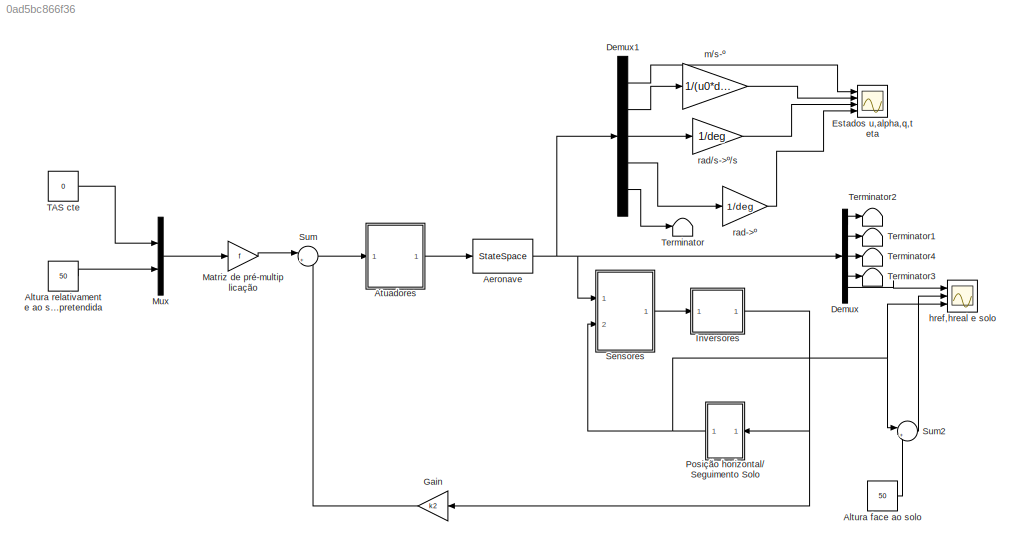
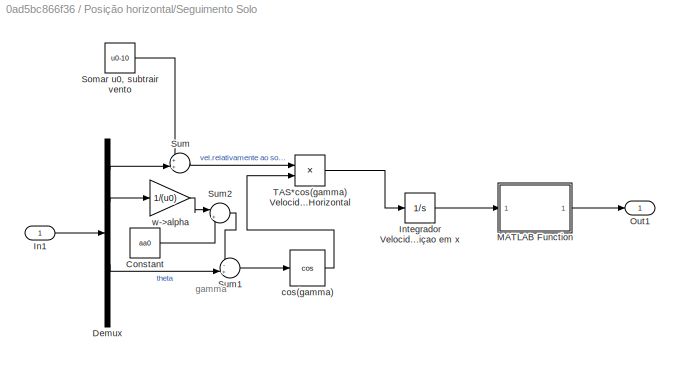
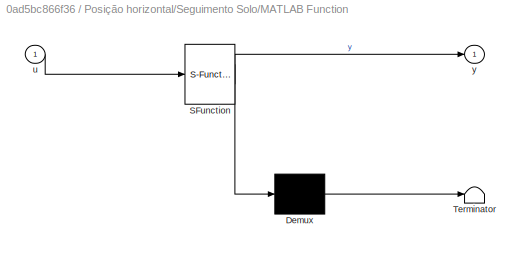
MODEL slx_0ad5bc866f36
KIND model
CONFIG AbsTol = auto
CONFIG EnableMultiTasking = off
CONFIG FixedStep = auto
CONFIG MaxStep = auto
CONFIG MinStep = auto
CONFIG RelTol = 1e-3
CONFIG SampleTimeConstraint = Unconstrained
CONFIG Solver = VariableStepAuto
CONFIG SolverName = VariableStepAuto
CONFIG StartTime = 0.0
CONFIG StopTime = 100
BLOCK [StateSpace] Aeronave
  A = ah
  B = bh
  C = eye(5)
  D = zeros(5,2)
  InitialCondition = [0 0 0 0 50+5*u0]
  Ports = [1, 1]
BLOCK [Constant] Altura face ao solo   
  Value = 50
BLOCK [Constant] Altura relativamente ao solo pretendida
  Value = 50
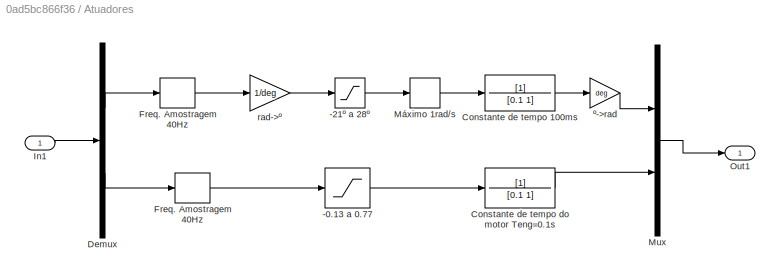
BLOCK [SubSystem] Atuadores
  Ports = [1, 1]
  RequestExecContextInheritance = off
BLOCK [TransferFcn] Atuadores/ Constante de tempo do motor Teng=0.1s
  Denominator = [0.1 1]
BLOCK [Saturate] Atuadores/-0.13 a 0.77
  InputPortMap = u0
  LowerLimit = -0.13
  Ports = [1, 1]
  UpperLimit = 0.77
BLOCK [Saturate] Atuadores/-21º a 28º
  InputPortMap = u0
  LowerLimit = -21
  Ports = [1, 1]
  UpperLimit = 28
BLOCK [TransferFcn] Atuadores/Constante de tempo 100ms
  Denominator = [0.1 1]
BLOCK [Demux] Atuadores/Demux
  DisplayOption = bar
  Outputs = 2
  Ports = [1, 2]
BLOCK [ZeroOrderHold] Atuadores/Freq. Amostragem 40Hz
  SampleTime = 1/40
BLOCK [Inport] Atuadores/In1
  IconDisplay = Port number
BLOCK [Mux] Atuadores/Mux
  DisplayOption = bar
  Inputs = 2
  Ports = [2, 1]
BLOCK [RateLimiter] Atuadores/Máximo 1rad//s
  FallingSlewLimit = -1/deg
  RisingSlewLimit = 1/deg
  SampleTimeMode = inherited
BLOCK [Outport] Atuadores/Out1
  IconDisplay = Port number
BLOCK [Gain] Atuadores/rad->º
  Gain = 1/deg
  OutDataTypeStr = Inherit: Inherit via internal rule
  ParamDataTypeStr = Inherit: Inherit via internal rule
  SaturateOnIntegerOverflow = off
BLOCK [Gain] Atuadores/º->rad
  Gain = deg
  OutDataTypeStr = Inherit: Inherit via internal rule
  ParamDataTypeStr = Inherit: Inherit via internal rule
  SaturateOnIntegerOverflow = off
BLOCK [Demux] Demux
  DisplayOption = bar
  Outputs = 5
  Ports = [1, 5]
BLOCK [Demux] Demux1
  DisplayOption = bar
  Outputs = 5
  Ports = [1, 5]
BLOCK [Scope] Estados u,alpha,q,teta
  Floating = off
  NumInputPorts = 4
  Ports = [4]
  ScopeSpecificationString = Simulink.scopes.TimeScopeBlockCfg('CurrentConfiguration', extmgr.ConfigurationSet(extmgr.Configuration('Core','General UI',true,'FigureColor',[0.862745098039216 0.862745098039216 0.862745098039216]),extmgr.Configuration('Core','Source UI',true),extmgr.Configuration('Sources','WiredSimulink',true,'DataLoggingVariableName','ScopeData1'),extmgr.Configuration('Visuals','Time Domain',true,'SerializedDi...<+4196ch>
BLOCK [Gain] Gain
  Gain = k2
  Multiplication = Matrix(K*u)
  OutDataTypeStr = Inherit: Inherit via internal rule
  ParamDataTypeStr = Inherit: Inherit via internal rule
  SaturateOnIntegerOverflow = off
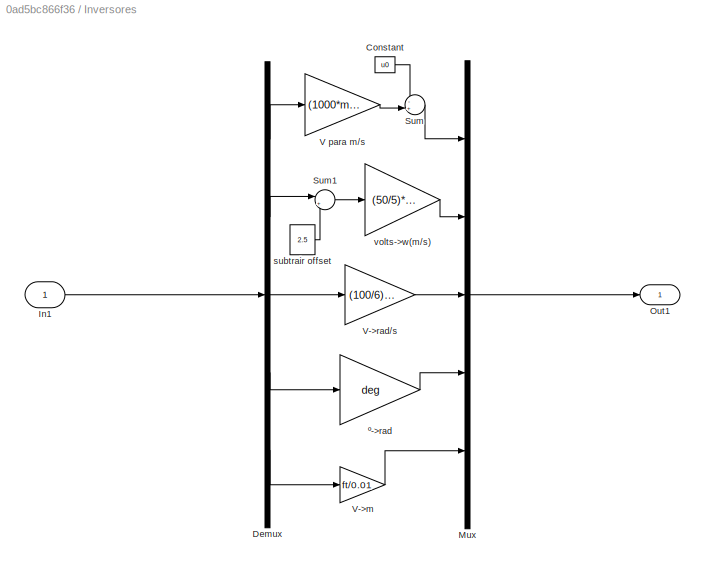
BLOCK [SubSystem] Inversores
  Ports = [1, 1]
  RequestExecContextInheritance = off
BLOCK [Constant] Inversores/Constant
  Value = u0
BLOCK [Demux] Inversores/Demux
  DisplayOption = bar
  Outputs = 5
  Ports = [1, 5]
BLOCK [Inport] Inversores/In1
  IconDisplay = Port number
BLOCK [Mux] Inversores/Mux
  DisplayOption = bar
  Inputs = 5
  Ports = [5, 1]
BLOCK [Outport] Inversores/Out1
  IconDisplay = Port number
BLOCK [Sum] Inversores/Sum
  IconShape = round
  InputSameDT = off
  Inputs = -+|
  OutDataTypeStr = Inherit: Inherit via internal rule
  Ports = [2, 1]
  SaturateOnIntegerOverflow = off
BLOCK [Sum] Inversores/Sum1
  IconShape = round
  InputSameDT = off
  Inputs = |+-
  OutDataTypeStr = Inherit: Inherit via internal rule
  Ports = [2, 1]
  SaturateOnIntegerOverflow = off
BLOCK [Gain] Inversores/V para m//s
  Gain = (1000*ms)/28
  OutDataTypeStr = Inherit: Inherit via internal rule
  ParamDataTypeStr = Inherit: Inherit via internal rule
  SaturateOnIntegerOverflow = off
BLOCK [Gain] Inversores/V->m
  Gain = ft/0.01
  OutDataTypeStr = Inherit: Inherit via internal rule
  ParamDataTypeStr = Inherit: Inherit via internal rule
  SaturateOnIntegerOverflow = off
BLOCK [Gain] Inversores/V->rad//s
  Gain = (100/6)*deg
  OutDataTypeStr = Inherit: Inherit via internal rule
  ParamDataTypeStr = Inherit: Inherit via internal rule
  SaturateOnIntegerOverflow = off
BLOCK [Constant] Inversores/subtrair offset
  Value = 2.5
BLOCK [Gain] Inversores/volts->w(m//s)
  Gain = (50/5)*u0*deg
  OutDataTypeStr = Inherit: Inherit via internal rule
  ParamDataTypeStr = Inherit: Inherit via internal rule
  SaturateOnIntegerOverflow = off
BLOCK [Gain] Inversores/º->rad
  Gain = deg
  OutDataTypeStr = Inherit: Inherit via internal rule
  ParamDataTypeStr = Inherit: Inherit via internal rule
  SaturateOnIntegerOverflow = off
BLOCK [Gain] Matriz de pré-multiplicação
  Gain = f
  Multiplication = Matrix(K*u)
  OutDataTypeStr = Inherit: Inherit via internal rule
  ParamDataTypeStr = Inherit: Inherit via internal rule
  SaturateOnIntegerOverflow = off
BLOCK [Mux] Mux
  DisplayOption = bar
  Inputs = 2
  Ports = [2, 1]
BLOCK [SubSystem] Posição horizontal//Seguimento Solo
  Ports = [1, 1]
  RequestExecContextInheritance = off
BLOCK [Constant] Posição horizontal//Seguimento Solo/Constant
  Value = aa0
BLOCK [Demux] Posição horizontal//Seguimento Solo/Demux
  DisplayOption = bar
  Outputs = 5
  Ports = [1, 5]
BLOCK [Inport] Posição horizontal//Seguimento Solo/In1
  IconDisplay = Port number
BLOCK [Integrator] Posição horizontal//Seguimento Solo/Integrador Velocidade para posiçao em x
  Ports = [1, 1]
BLOCK [SubSystem] Posição horizontal//Seguimento Solo/MATLAB Function
  ErrorFcn = Stateflow.Translate.translate
  PermitHierarchicalResolution = ExplicitOnly
  Ports = [1, 1]
  RequestExecContextInheritance = off
  SFBlockType = MATLAB Function
  TreatAsAtomicUnit = on
BLOCK [Demux] Posição horizontal//Seguimento Solo/MATLAB Function/ Demux 
  Outputs = 1
  Ports = [1, 1]
BLOCK [S-Function] Posição horizontal//Seguimento Solo/MATLAB Function/ SFunction 
  EnableBusSupport = on
  FunctionName = sf_sfun
  PortCounts = [1 2]
  Ports = [1, 2]
  SFcnIsStateOwnerBlock = off
  SFunctionDeploymentMode = off
  Tag = Stateflow S-Function ponto5 2
BLOCK [Terminator] Posição horizontal//Seguimento Solo/MATLAB Function/ Terminator 
BLOCK [Inport] Posição horizontal//Seguimento Solo/MATLAB Function/u
  IconDisplay = Port number
BLOCK [Outport] Posição horizontal//Seguimento Solo/MATLAB Function/y
  IconDisplay = Port number
BLOCK [Outport] Posição horizontal//Seguimento Solo/Out1
  IconDisplay = Port number
BLOCK [Constant] Posição horizontal//Seguimento Solo/Somar u0, subtrair vento
  Value = u0-10
BLOCK [Sum] Posição horizontal//Seguimento Solo/Sum
  IconShape = round
  InputSameDT = off
  Inputs = ++|
  OutDataTypeStr = Inherit: Inherit via internal rule
  Ports = [2, 1]
  SaturateOnIntegerOverflow = off
BLOCK [Sum] Posição horizontal//Seguimento Solo/Sum1
  IconShape = round
  InputSameDT = off
  Inputs = -+|
  OutDataTypeStr = Inherit: Inherit via internal rule
  Ports = [2, 1]
  SaturateOnIntegerOverflow = off
BLOCK [Sum] Posição horizontal//Seguimento Solo/Sum2
  IconShape = round
  InputSameDT = off
  Inputs = |++
  OutDataTypeStr = Inherit: Inherit via internal rule
  Ports = [2, 1]
  SaturateOnIntegerOverflow = off
BLOCK [Product] Posição horizontal//Seguimento Solo/TAS*cos(gamma) Velocidade Horizontal
  InputSameDT = off
  OutDataTypeStr = Inherit: Inherit via internal rule
  Ports = [2, 1]
  RndMeth = Floor
  SaturateOnIntegerOverflow = off
BLOCK [Trigonometry] Posição horizontal//Seguimento Solo/cos(gamma)
  Operator = cos
  Ports = [1, 1]
BLOCK [Gain] Posição horizontal//Seguimento Solo/w->alpha
  Gain = 1/(u0)
  OutDataTypeStr = Inherit: Inherit via internal rule
  ParamDataTypeStr = Inherit: Inherit via internal rule
  SaturateOnIntegerOverflow = off
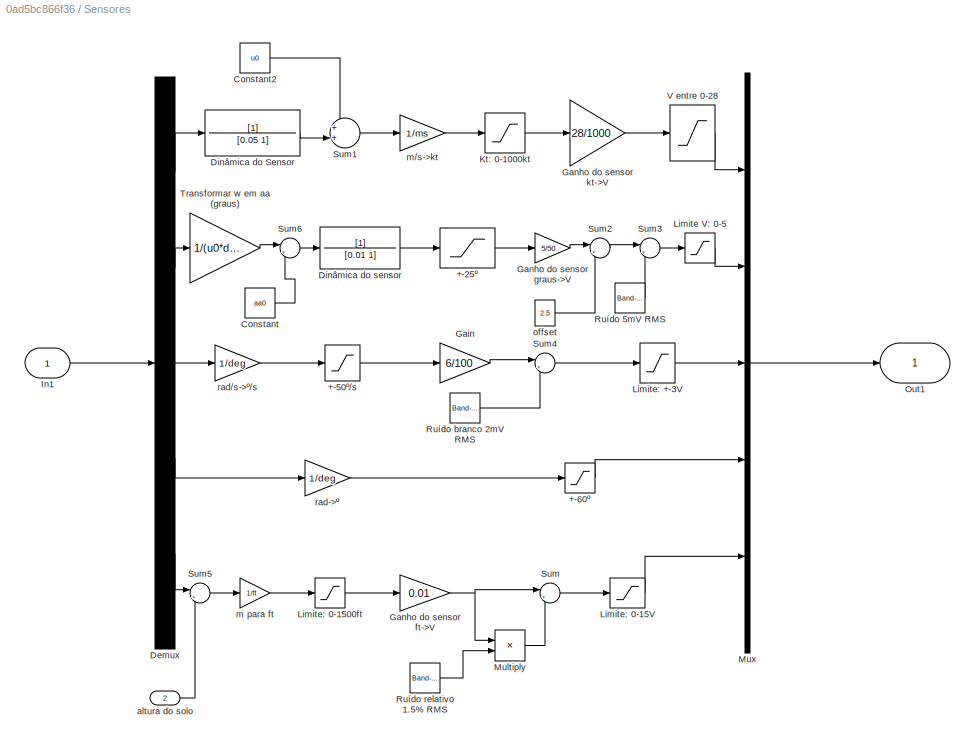
BLOCK [SubSystem] Sensores
  Ports = [2, 1]
  RequestExecContextInheritance = off
BLOCK [TransferFcn] Sensores/ Dinâmica do Sensor
  Denominator = [0.05 1]
BLOCK [Saturate] Sensores/+-25º
  InputPortMap = u0
  LowerLimit = -25
  Ports = [1, 1]
  UpperLimit = 25
BLOCK [Saturate] Sensores/+-50º//s
  InputPortMap = u0
  LowerLimit = -50
  Ports = [1, 1]
  UpperLimit = 50
BLOCK [Saturate] Sensores/+-60º
  InputPortMap = u0
  LowerLimit = -60
  Ports = [1, 1]
  UpperLimit = 60
BLOCK [Constant] Sensores/Constant
  Value = aa0
BLOCK [Constant] Sensores/Constant2
  Value = u0
BLOCK [Demux] Sensores/Demux
  DisplayOption = bar
  Outputs = 5
  Ports = [1, 5]
BLOCK [TransferFcn] Sensores/Dinâmica do sensor
  Denominator = [0.01 1]
BLOCK [Gain] Sensores/Gain
  Gain = 6/100
  OutDataTypeStr = Inherit: Inherit via internal rule
  ParamDataTypeStr = Inherit: Inherit via internal rule
  SaturateOnIntegerOverflow = off
BLOCK [Gain] Sensores/Ganho do sensor ft->V
  Gain = 0.01
  OutDataTypeStr = Inherit: Inherit via internal rule
  ParamDataTypeStr = Inherit: Inherit via internal rule
  SaturateOnIntegerOverflow = off
BLOCK [Gain] Sensores/Ganho do sensor graus->V
  Gain = 5/50
  OutDataTypeStr = Inherit: Inherit via internal rule
  ParamDataTypeStr = Inherit: Inherit via internal rule
  SaturateOnIntegerOverflow = off
BLOCK [Gain] Sensores/Ganho do sensor kt->V
  Gain = 28/1000
  OutDataTypeStr = Inherit: Inherit via internal rule
  ParamDataTypeStr = Inherit: Inherit via internal rule
  SaturateOnIntegerOverflow = off
BLOCK [Inport] Sensores/In1
  IconDisplay = Port number
BLOCK [Saturate] Sensores/Kt: 0-1000kt
  InputPortMap = u0
  LowerLimit = 0
  Ports = [1, 1]
  UpperLimit = 1000
BLOCK [Saturate] Sensores/Limite V: 0-5
  InputPortMap = u0
  LowerLimit = 0
  Ports = [1, 1]
  UpperLimit = 5
BLOCK [Saturate] Sensores/Limite: +-3V
  InputPortMap = u0
  LowerLimit = -3
  Ports = [1, 1]
  UpperLimit = 3
BLOCK [Saturate] Sensores/Limite: 0-1500ft
  InputPortMap = u0
  LowerLimit = 0
  Ports = [1, 1]
  UpperLimit = 1500
BLOCK [Saturate] Sensores/Limite: 0-15V
  InputPortMap = u0
  LowerLimit = 0
  Ports = [1, 1]
  UpperLimit = 1500*0.01
BLOCK [Product] Sensores/Multiply
  InputSameDT = off
  OutDataTypeStr = Inherit: Inherit via internal rule
  Ports = [2, 1]
  RndMeth = Floor
  SaturateOnIntegerOverflow = off
BLOCK [Mux] Sensores/Mux
  DisplayOption = bar
  Inputs = 5
  Ports = [5, 1]
BLOCK [Outport] Sensores/Out1
  IconDisplay = Port number
BLOCK [Reference] Sensores/Ruído 5mV RMS  REF=simulink/Sources/Band-Limited
White Noise
  Ports = [0, 1]
  SourceBlock = simulink/Sources/Band-Limited\nWhite Noise
  SourceProductBaseCode = SL
  SourceProductName = Simulink
  SourceType = Band-Limited White Noise.
BLOCK [Reference] Sensores/Ruído branco 2mV RMS  REF=simulink/Sources/Band-Limited
White Noise
  Ports = [0, 1]
  SourceBlock = simulink/Sources/Band-Limited\nWhite Noise
  SourceProductBaseCode = SL
  SourceProductName = Simulink
  SourceType = Band-Limited White Noise.
BLOCK [Reference] Sensores/Ruído relativo 1.5% RMS  REF=simulink/Sources/Band-Limited
White Noise
  Ports = [0, 1]
  SourceBlock = simulink/Sources/Band-Limited\nWhite Noise
  SourceProductBaseCode = SL
  SourceProductName = Simulink
  SourceType = Band-Limited White Noise.
BLOCK [Sum] Sensores/Sum
  IconShape = round
  InputSameDT = off
  Inputs = |++
  OutDataTypeStr = Inherit: Inherit via internal rule
  Ports = [2, 1]
  SaturateOnIntegerOverflow = off
BLOCK [Sum] Sensores/Sum1
  IconShape = round
  InputSameDT = off
  Inputs = ++|
  OutDataTypeStr = Inherit: Inherit via internal rule
  Ports = [2, 1]
  SaturateOnIntegerOverflow = off
BLOCK [Sum] Sensores/Sum2
  IconShape = round
  InputSameDT = off
  Inputs = |++
  OutDataTypeStr = Inherit: Inherit via internal rule
  Ports = [2, 1]
  SaturateOnIntegerOverflow = off
BLOCK [Sum] Sensores/Sum3
  IconShape = round
  InputSameDT = off
  Inputs = |++
  OutDataTypeStr = Inherit: Inherit via internal rule
  Ports = [2, 1]
  SaturateOnIntegerOverflow = off
BLOCK [Sum] Sensores/Sum4
  IconShape = round
  InputSameDT = off
  Inputs = |++
  OutDataTypeStr = Inherit: Inherit via internal rule
  Ports = [2, 1]
  SaturateOnIntegerOverflow = off
BLOCK [Sum] Sensores/Sum5
  IconShape = round
  InputSameDT = off
  Inputs = |+-
  OutDataTypeStr = Inherit: Inherit via internal rule
  Ports = [2, 1]
  SaturateOnIntegerOverflow = off
BLOCK [Sum] Sensores/Sum6
  IconShape = round
  InputSameDT = off
  Inputs = |++
  OutDataTypeStr = Inherit: Inherit via internal rule
  Ports = [2, 1]
  SaturateOnIntegerOverflow = off
BLOCK [Gain] Sensores/Transformar w em aa (graus)
  Gain = 1/(u0*deg)
  OutDataTypeStr = Inherit: Inherit via internal rule
  ParamDataTypeStr = Inherit: Inherit via internal rule
  SaturateOnIntegerOverflow = off
BLOCK [Saturate] Sensores/V entre 0-28
  InputPortMap = u0
  LowerLimit = 0
  Ports = [1, 1]
  UpperLimit = 28
BLOCK [Inport] Sensores/altura do solo 
  IconDisplay = Port number
  Port = 2
BLOCK [Gain] Sensores/m para ft
  Gain = 1/ft
  OutDataTypeStr = Inherit: Inherit via internal rule
  ParamDataTypeStr = Inherit: Inherit via internal rule
  SaturateOnIntegerOverflow = off
BLOCK [Gain] Sensores/m//s->kt
  Gain = 1/ms
  OutDataTypeStr = Inherit: Inherit via internal rule
  ParamDataTypeStr = Inherit: Inherit via internal rule
  SaturateOnIntegerOverflow = off
BLOCK [Constant] Sensores/offset
  Value = 2.5
BLOCK [Gain] Sensores/rad->º
  Gain = 1/deg
  OutDataTypeStr = Inherit: Inherit via internal rule
  ParamDataTypeStr = Inherit: Inherit via internal rule
  SaturateOnIntegerOverflow = off
BLOCK [Gain] Sensores/rad//s->º//s
  Gain = 1/deg
  OutDataTypeStr = Inherit: Inherit via internal rule
  ParamDataTypeStr = Inherit: Inherit via internal rule
  SaturateOnIntegerOverflow = off
BLOCK [Sum] Sum
  IconShape = round
  InputSameDT = off
  Inputs = |+-
  OutDataTypeStr = Inherit: Inherit via internal rule
  Ports = [2, 1]
  SaturateOnIntegerOverflow = off
BLOCK [Sum] Sum2
  IconShape = round
  InputSameDT = off
  Inputs = |++
  OutDataTypeStr = Inherit: Inherit via internal rule
  Ports = [2, 1]
  SaturateOnIntegerOverflow = off
BLOCK [Constant] TAS cte
  Value = 0
BLOCK [Terminator] Terminator
BLOCK [Terminator] Terminator1
BLOCK [Terminator] Terminator2
BLOCK [Terminator] Terminator3
BLOCK [Terminator] Terminator4
BLOCK [Scope] href,hreal e solo
  Floating = off
  NumInputPorts = 3
  Ports = [3]
  ScopeSpecificationString = Simulink.scopes.TimeScopeBlockCfg('CurrentConfiguration', extmgr.ConfigurationSet(extmgr.Configuration('Core','General UI',true,'FigureColor',[0.862745098039216 0.862745098039216 0.862745098039216]),extmgr.Configuration('Core','Source UI',true),extmgr.Configuration('Sources','WiredSimulink',true,'DataLoggingVariableName','ScopeData3'),extmgr.Configuration('Visuals','Time Domain',true,'SerializedDi...<+1928ch>
BLOCK [Gain] m//s-º
  Gain = 1/(u0*deg)
  OutDataTypeStr = Inherit: Inherit via internal rule
  ParamDataTypeStr = Inherit: Inherit via internal rule
  SaturateOnIntegerOverflow = off
BLOCK [Gain] rad->º
  Gain = 1/deg
  OutDataTypeStr = Inherit: Inherit via internal rule
  ParamDataTypeStr = Inherit: Inherit via internal rule
  SaturateOnIntegerOverflow = off
BLOCK [Gain] rad//s->º//s
  Gain = 1/deg
  OutDataTypeStr = Inherit: Inherit via internal rule
  ParamDataTypeStr = Inherit: Inherit via internal rule
  SaturateOnIntegerOverflow = off
ANNOTATION Posição horizontal//Seguimento Solo: gamma
NET Aeronave:1 -> Demux1:1, Demux:1, Sensores:1
LINE Altura face ao solo   :1 -> Sum2:2
LINE Altura relativamente ao solo pretendida:1 -> Mux:2
LINE Atuadores/ Constante de tempo do motor Teng=0.1s:1 -> Atuadores/Mux:2
LINE Atuadores/-0.13 a 0.77:1 -> Atuadores/ Constante de tempo do motor Teng=0.1s:1
LINE Atuadores/-21º a 28º:1 -> Atuadores/Máximo 1rad//s:1
LINE Atuadores/Constante de tempo 100ms:1 -> Atuadores/º->rad:1
LINE Atuadores/Demux:1 -> Atuadores/Freq. Amostragem 40Hz:1
LINE Atuadores/Demux:2 -> Atuadores/Freq. Amostragem 40Hz:1
NET Atuadores/Freq. Amostragem 40Hz:1 -> Atuadores/-0.13 a 0.77:1, Atuadores/rad->º:1
LINE Atuadores/In1:1 -> Atuadores/Demux:1
LINE Atuadores/Mux:1 -> Atuadores/Out1:1
LINE Atuadores/Máximo 1rad//s:1 -> Atuadores/Constante de tempo 100ms:1
LINE Atuadores/rad->º:1 -> Atuadores/-21º a 28º:1
LINE Atuadores/º->rad:1 -> Atuadores/Mux:1
LINE Atuadores:1 -> Aeronave:1
LINE Demux1:1 -> Estados u,alpha,q,teta:1
LINE Demux1:2 -> m//s-º:1
LINE Demux1:3 -> rad//s->º//s:1
LINE Demux1:4 -> rad->º:1
LINE Demux1:5 -> Terminator:1
LINE Demux:1 -> Terminator2:1
LINE Demux:2 -> Terminator1:1
LINE Demux:3 -> Terminator4:1
LINE Demux:4 -> Terminator3:1
LINE Demux:5 -> href,hreal e solo:1
LINE Gain:1 -> Sum:2
LINE Inversores/Constant:1 -> Inversores/Sum:1
LINE Inversores/Demux:1 -> Inversores/V para m//s:1
LINE Inversores/Demux:2 -> Inversores/Sum1:1
LINE Inversores/Demux:3 -> Inversores/V->rad//s:1
LINE Inversores/Demux:4 -> Inversores/º->rad:1
LINE Inversores/Demux:5 -> Inversores/V->m:1
LINE Inversores/In1:1 -> Inversores/Demux:1
LINE Inversores/Mux:1 -> Inversores/Out1:1
LINE Inversores/Sum1:1 -> Inversores/volts->w(m//s):1
LINE Inversores/Sum:1 -> Inversores/Mux:1
LINE Inversores/V para m//s:1 -> Inversores/Sum:2
LINE Inversores/V->m:1 -> Inversores/Mux:5
LINE Inversores/V->rad//s:1 -> Inversores/Mux:3
LINE Inversores/subtrair offset:1 -> Inversores/Sum1:2
LINE Inversores/volts->w(m//s):1 -> Inversores/Mux:2
LINE Inversores/º->rad:1 -> Inversores/Mux:4
NET Inversores:1 -> Gain:1, Posição horizontal//Seguimento Solo:1
LINE Matriz de pré-multiplicação:1 -> Sum:1
LINE Mux:1 -> Matriz de pré-multiplicação:1
LINE Posição horizontal//Seguimento Solo/Constant:1 -> Posição horizontal//Seguimento Solo/Sum2:2
LINE Posição horizontal//Seguimento Solo/Demux:1 -> Posição horizontal//Seguimento Solo/Sum:2
LINE Posição horizontal//Seguimento Solo/Demux:2 -> Posição horizontal//Seguimento Solo/w->alpha:1
LINE Posição horizontal//Seguimento Solo/Demux:4 -> Posição horizontal//Seguimento Solo/Sum1:2
LINE Posição horizontal//Seguimento Solo/In1:1 -> Posição horizontal//Seguimento Solo/Demux:1
LINE Posição horizontal//Seguimento Solo/Integrador Velocidade para posiçao em x:1 -> Posição horizontal//Seguimento Solo/MATLAB Function:1
LINE Posição horizontal//Seguimento Solo/MATLAB Function:1 -> Posição horizontal//Seguimento Solo/Out1:1
LINE Posição horizontal//Seguimento Solo/Somar u0, subtrair vento:1 -> Posição horizontal//Seguimento Solo/Sum:1
LINE Posição horizontal//Seguimento Solo/Sum1:1 -> Posição horizontal//Seguimento Solo/cos(gamma):1
LINE Posição horizontal//Seguimento Solo/Sum2:1 -> Posição horizontal//Seguimento Solo/Sum1:1
LINE Posição horizontal//Seguimento Solo/Sum:1 -> Posição horizontal//Seguimento Solo/TAS*cos(gamma) Velocidade Horizontal:1
LINE Posição horizontal//Seguimento Solo/TAS*cos(gamma) Velocidade Horizontal:1 -> Posição horizontal//Seguimento Solo/Integrador Velocidade para posiçao em x:1
LINE Posição horizontal//Seguimento Solo/cos(gamma):1 -> Posição horizontal//Seguimento Solo/TAS*cos(gamma) Velocidade Horizontal:2
LINE Posição horizontal//Seguimento Solo/w->alpha:1 -> Posição horizontal//Seguimento Solo/Sum2:1
NET Posição horizontal//Seguimento Solo:1 -> Sensores:2, Sum2:1, href,hreal e solo:3
LINE Sensores/ Dinâmica do Sensor:1 -> Sensores/Sum1:2
LINE Sensores/+-25º:1 -> Sensores/Ganho do sensor graus->V:1
LINE Sensores/+-50º//s:1 -> Sensores/Gain:1
LINE Sensores/+-60º:1 -> Sensores/Mux:4
LINE Sensores/Constant2:1 -> Sensores/Sum1:1
LINE Sensores/Constant:1 -> Sensores/Sum6:2
LINE Sensores/Demux:1 -> Sensores/ Dinâmica do Sensor:1
LINE Sensores/Demux:2 -> Sensores/Transformar w em aa (graus):1
LINE Sensores/Demux:3 -> Sensores/rad//s->º//s:1
LINE Sensores/Demux:4 -> Sensores/rad->º:1
LINE Sensores/Demux:5 -> Sensores/Sum5:1
LINE Sensores/Dinâmica do sensor:1 -> Sensores/+-25º:1
LINE Sensores/Gain:1 -> Sensores/Sum4:1
NET Sensores/Ganho do sensor ft->V:1 -> Sensores/Multiply:1, Sensores/Sum:1
LINE Sensores/Ganho do sensor graus->V:1 -> Sensores/Sum2:1
LINE Sensores/Ganho do sensor kt->V:1 -> Sensores/V entre 0-28:1
LINE Sensores/In1:1 -> Sensores/Demux:1
LINE Sensores/Kt: 0-1000kt:1 -> Sensores/Ganho do sensor kt->V:1
LINE Sensores/Limite V: 0-5:1 -> Sensores/Mux:2
LINE Sensores/Limite: +-3V:1 -> Sensores/Mux:3
LINE Sensores/Limite: 0-1500ft:1 -> Sensores/Ganho do sensor ft->V:1
LINE Sensores/Limite: 0-15V:1 -> Sensores/Mux:5
LINE Sensores/Multiply:1 -> Sensores/Sum:2
LINE Sensores/Mux:1 -> Sensores/Out1:1
LINE Sensores/Ruído 5mV RMS:1 -> Sensores/Sum3:2
LINE Sensores/Ruído branco 2mV RMS:1 -> Sensores/Sum4:2
LINE Sensores/Ruído relativo 1.5% RMS:1 -> Sensores/Multiply:2
LINE Sensores/Sum1:1 -> Sensores/m//s->kt:1
LINE Sensores/Sum2:1 -> Sensores/Sum3:1
LINE Sensores/Sum3:1 -> Sensores/Limite V: 0-5:1
LINE Sensores/Sum4:1 -> Sensores/Limite: +-3V:1
LINE Sensores/Sum5:1 -> Sensores/m para ft:1
LINE Sensores/Sum6:1 -> Sensores/Dinâmica do sensor:1
LINE Sensores/Sum:1 -> Sensores/Limite: 0-15V:1
LINE Sensores/Transformar w em aa (graus):1 -> Sensores/Sum6:1
LINE Sensores/V entre 0-28:1 -> Sensores/Mux:1
LINE Sensores/altura do solo :1 -> Sensores/Sum5:2
LINE Sensores/m para ft:1 -> Sensores/Limite: 0-1500ft:1
LINE Sensores/m//s->kt:1 -> Sensores/Kt: 0-1000kt:1
LINE Sensores/offset:1 -> Sensores/Sum2:2
LINE Sensores/rad->º:1 -> Sensores/+-60º:1
LINE Sensores/rad//s->º//s:1 -> Sensores/+-50º//s:1
LINE Sensores:1 -> Inversores:1
LINE Sum2:1 -> href,hreal e solo:2
LINE Sum:1 -> Atuadores:1
LINE TAS cte:1 -> Mux:1
LINE m//s-º:1 -> Estados u,alpha,q,teta:2
LINE rad->º:1 -> Estados u,alpha,q,teta:4
LINE rad//s->º//s:1 -> Estados u,alpha,q,teta:3
note: NET lines group one-source signal fan-out (src -> all destinations, sorted); 1:1 wires keep LINE
CHART Posição horizontal//Seguimento Solo/MATLAB Function states=1 transitions=1
  STATE_LABEL 'eML_blk_kernel()'
  STATE_LABEL 'SCRIPT:\nfunction y = fcn(u)\n\nif (u<20*85.4*0.514444444)\n   y=(-5/20)*u +5*85.4*0.514444444;\n   \nelseif (20*85.4*0.514444444<=u) && (u<40*85.4*0.514444444)\n   y=0;\n   \nelseif (40*85.4*0.514444444<=u) && (u<60*85.4*0.514444444)\n   %y=2.5*u0*sin((3.14159265359/(20*u0))*u) +2.5*u0;\n   y=5*85.4*0.514444444*sin(((u/(20*85.4*0.514444444))-2)*pi/2);\n\nelse\n    \n   y=5*85.4*0.514444444;\nend\n\n'
